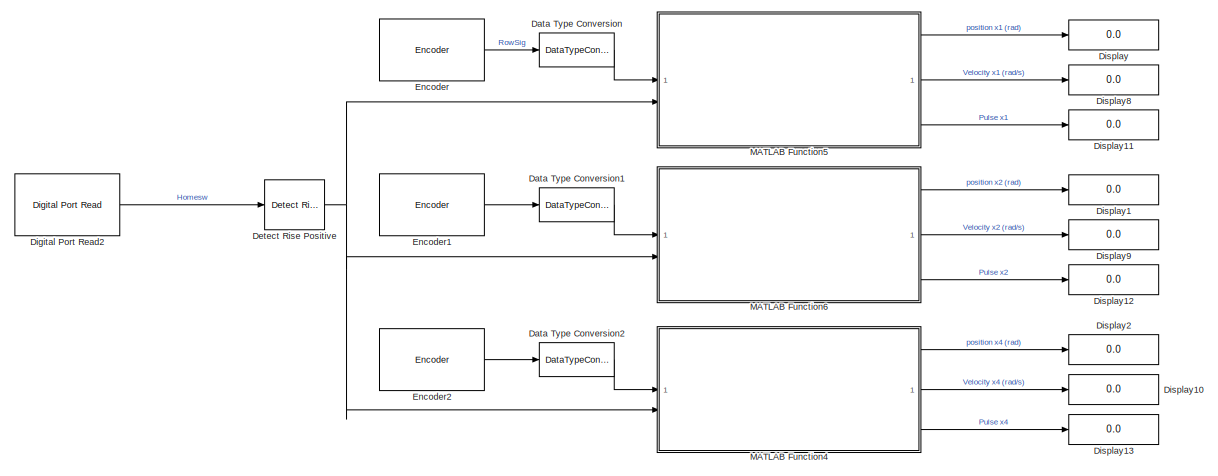
[diagram: root canvas - part 1/2, left side, full height]
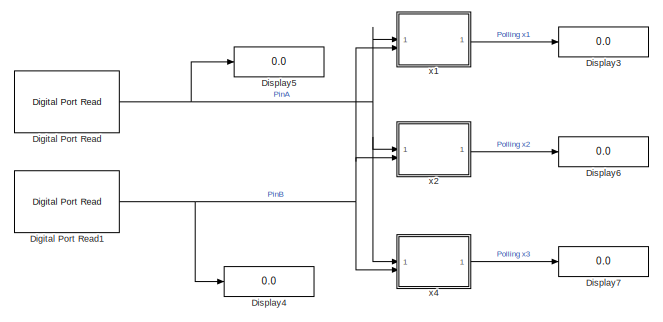
[diagram: root canvas - part 2/2, middle right region]
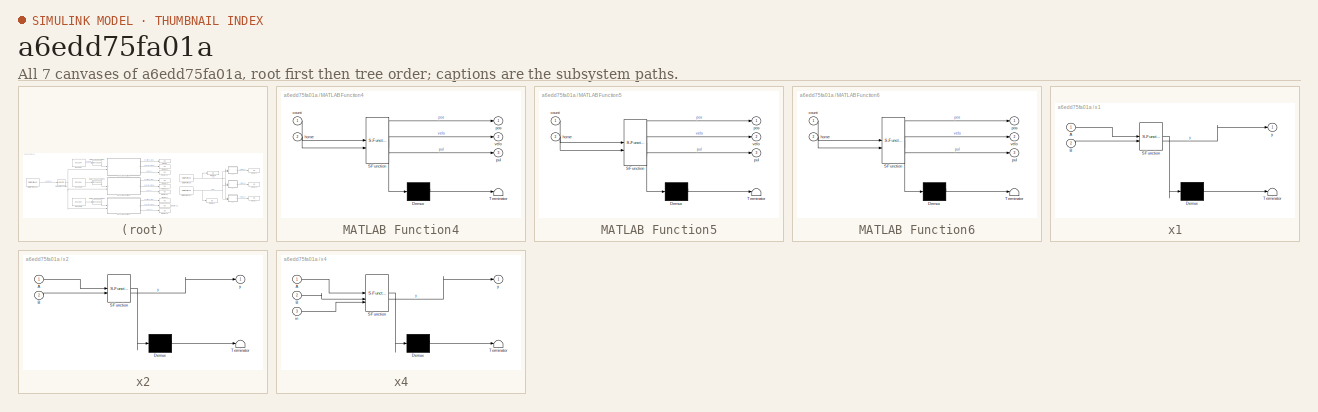
[diagram: thumbnail index - all 7 canvases of the model, root first then tree order]
MODEL slx_a6edd75fa01a
KIND model
CONFIG AbsTol = auto
CONFIG EnableMultiTasking = on
CONFIG FixedStep = 0.001
CONFIG MaxStep = auto
CONFIG MinStep = auto
CONFIG RelTol = 1e-3
CONFIG SampleTimeConstraint = Unconstrained
CONFIG SolverName = FixedStepAuto
CONFIG StartTime = 0.0
CONFIG StopTime = inf
BLOCK [DataTypeConversion] Data Type Conversion
  OutDataTypeStr = double
  RndMeth = Floor
  SaturateOnIntegerOverflow = off
BLOCK [DataTypeConversion] Data Type Conversion1
  OutDataTypeStr = double
  RndMeth = Floor
  SaturateOnIntegerOverflow = off
BLOCK [DataTypeConversion] Data Type Conversion2
  OutDataTypeStr = double
  RndMeth = Floor
  SaturateOnIntegerOverflow = off
BLOCK [Reference] Detect Rise Positive  REF=simulink/Logic and Bit
Operations/Detect Rise
Positive
  SourceBlock = simulink/Logic and Bit\nOperations/Detect Rise\nPositive
  SourceType = Detect Rise Positive
BLOCK [Reference] Digital Port Read  REF=stm32f4xxblockslib/Digital Port Read
  LibrarySourceBlock = stm32g4xxblockslib/Digital Port Read
  SourceBlock = stm32f4xxblockslib/Digital Port Read
  SourceType = stm32cube.blocks.DigitalPortRead
BLOCK [Reference] Digital Port Read1  REF=stm32f4xxblockslib/Digital Port Read
  LibrarySourceBlock = stm32g4xxblockslib/Digital Port Read
  SourceBlock = stm32f4xxblockslib/Digital Port Read
  SourceType = stm32cube.blocks.DigitalPortRead
BLOCK [Reference] Digital Port Read2  REF=stm32f4xxblockslib/Digital Port Read
  LibrarySourceBlock = stm32g4xxblockslib/Digital Port Read
  SourceBlock = stm32f4xxblockslib/Digital Port Read
  SourceType = stm32cube.blocks.DigitalPortRead
BLOCK [Display] Display
  Decimation = 1
BLOCK [Display] Display1
  Decimation = 1
BLOCK [Display] Display10
  Decimation = 1
BLOCK [Display] Display11
  Decimation = 1
BLOCK [Display] Display12
  Decimation = 1
BLOCK [Display] Display13
  Decimation = 1
BLOCK [Display] Display2
  Decimation = 1
BLOCK [Display] Display3
  Decimation = 1
BLOCK [Display] Display4
  Decimation = 1
BLOCK [Display] Display5
  Decimation = 1
BLOCK [Display] Display6
  Decimation = 1
BLOCK [Display] Display7
  Decimation = 1
BLOCK [Display] Display8
  Decimation = 1
BLOCK [Display] Display9
  Decimation = 1
BLOCK [Reference] Encoder  REF=stm32g4xxblockslib/Encoder
  SourceBlock = stm32g4xxblockslib/Encoder
  SourceType = stm32cube.blocks.EncoderBlockForG4
BLOCK [Reference] Encoder1  REF=stm32g4xxblockslib/Encoder
  SourceBlock = stm32g4xxblockslib/Encoder
  SourceType = stm32cube.blocks.EncoderBlockForG4
BLOCK [Reference] Encoder2  REF=stm32g4xxblockslib/Encoder
  SourceBlock = stm32g4xxblockslib/Encoder
  SourceType = stm32cube.blocks.EncoderBlockForG4
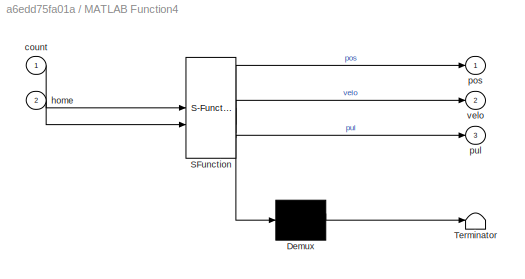
BLOCK [SubSystem] MATLAB Function4
  ErrorFcn = Stateflow.Translate.translate
  PermitHierarchicalResolution = ExplicitOnly
  SFBlockType = MATLAB Function
  TreatAsAtomicUnit = on
BLOCK [Demux] MATLAB Function4/ Demux 
  Outputs = 1
BLOCK [S-Function] MATLAB Function4/ SFunction 
  EnableBusSupport = on
  FunctionName = sf_sfun
  PortCounts = [2 4]
  SFcnIsStateOwnerBlock = off
  SFunctionDeploymentMode = off
  Tag = Stateflow S-Function 7
BLOCK [Terminator] MATLAB Function4/ Terminator 
BLOCK [Inport] MATLAB Function4/count
BLOCK [Inport] MATLAB Function4/home
  Port = 2
BLOCK [Outport] MATLAB Function4/pos
BLOCK [Outport] MATLAB Function4/pul
  Port = 3
BLOCK [Outport] MATLAB Function4/velo
  Port = 2
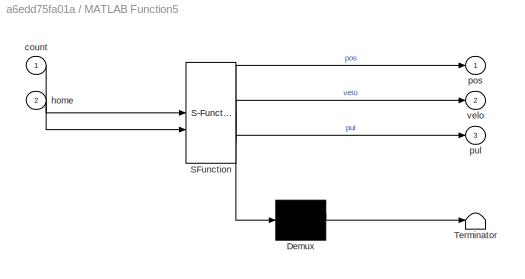
BLOCK [SubSystem] MATLAB Function5
  ErrorFcn = Stateflow.Translate.translate
  PermitHierarchicalResolution = ExplicitOnly
  SFBlockType = MATLAB Function
  TreatAsAtomicUnit = on
BLOCK [Demux] MATLAB Function5/ Demux 
  Outputs = 1
BLOCK [S-Function] MATLAB Function5/ SFunction 
  EnableBusSupport = on
  FunctionName = sf_sfun
  PortCounts = [2 4]
  SFcnIsStateOwnerBlock = off
  SFunctionDeploymentMode = off
  Tag = Stateflow S-Function 8
BLOCK [Terminator] MATLAB Function5/ Terminator 
BLOCK [Inport] MATLAB Function5/count
BLOCK [Inport] MATLAB Function5/home
  Port = 2
BLOCK [Outport] MATLAB Function5/pos
BLOCK [Outport] MATLAB Function5/pul
  Port = 3
BLOCK [Outport] MATLAB Function5/velo
  Port = 2
BLOCK [SubSystem] MATLAB Function6
  ErrorFcn = Stateflow.Translate.translate
  PermitHierarchicalResolution = ExplicitOnly
  SFBlockType = MATLAB Function
  TreatAsAtomicUnit = on
BLOCK [Demux] MATLAB Function6/ Demux 
  Outputs = 1
BLOCK [S-Function] MATLAB Function6/ SFunction 
  EnableBusSupport = on
  FunctionName = sf_sfun
  PortCounts = [2 4]
  SFcnIsStateOwnerBlock = off
  SFunctionDeploymentMode = off
  Tag = Stateflow S-Function 9
BLOCK [Terminator] MATLAB Function6/ Terminator 
BLOCK [Inport] MATLAB Function6/count
BLOCK [Inport] MATLAB Function6/home
  Port = 2
BLOCK [Outport] MATLAB Function6/pos
BLOCK [Outport] MATLAB Function6/pul
  Port = 3
BLOCK [Outport] MATLAB Function6/velo
  Port = 2
BLOCK [SubSystem] x1
  ErrorFcn = Stateflow.Translate.translate
  PermitHierarchicalResolution = ExplicitOnly
  SFBlockType = MATLAB Function
  TreatAsAtomicUnit = on
BLOCK [Demux] x1/ Demux 
  Outputs = 1
BLOCK [S-Function] x1/ SFunction 
  EnableBusSupport = on
  FunctionName = sf_sfun
  PortCounts = [2 2]
  SFcnIsStateOwnerBlock = off
  SFunctionDeploymentMode = off
  Tag = Stateflow S-Function 1
BLOCK [Terminator] x1/ Terminator 
BLOCK [Inport] x1/A
BLOCK [Inport] x1/B
  Port = 2
BLOCK [Outport] x1/y
BLOCK [SubSystem] x2
  ErrorFcn = Stateflow.Translate.translate
  PermitHierarchicalResolution = ExplicitOnly
  SFBlockType = MATLAB Function
  TreatAsAtomicUnit = on
BLOCK [Demux] x2/ Demux 
  Outputs = 1
BLOCK [S-Function] x2/ SFunction 
  EnableBusSupport = on
  FunctionName = sf_sfun
  PortCounts = [2 2]
  SFcnIsStateOwnerBlock = off
  SFunctionDeploymentMode = off
  Tag = Stateflow S-Function 5
BLOCK [Terminator] x2/ Terminator 
BLOCK [Inport] x2/A
BLOCK [Inport] x2/B
  Port = 2
BLOCK [Outport] x2/y
BLOCK [SubSystem] x4
  ErrorFcn = Stateflow.Translate.translate
  PermitHierarchicalResolution = ExplicitOnly
  SFBlockType = MATLAB Function
  TreatAsAtomicUnit = on
BLOCK [Demux] x4/ Demux 
  Outputs = 1
BLOCK [S-Function] x4/ SFunction 
  EnableBusSupport = on
  FunctionName = sf_sfun
  PortCounts = [3 2]
  SFcnIsStateOwnerBlock = off
  SFunctionDeploymentMode = off
  Tag = Stateflow S-Function 6
BLOCK [Terminator] x4/ Terminator 
BLOCK [Inport] x4/A
BLOCK [Inport] x4/B
  Port = 2
BLOCK [Inport] x4/in
  Port = 3
BLOCK [Outport] x4/y
LINE Data Type Conversion1:1 -> MATLAB Function6:1
LINE Data Type Conversion2:1 -> MATLAB Function4:1
LINE Data Type Conversion:1 -> MATLAB Function5:1
NET Detect Rise Positive:1 -> MATLAB Function4:2, MATLAB Function5:2, MATLAB Function6:2
NET Digital Port Read1:1 -> Display4:1, x1:2, x2:2, x4:2
LINE Digital Port Read2:1 -> Detect Rise Positive:1
NET Digital Port Read:1 -> Display5:1, x1:1, x2:1, x4:1
LINE Encoder1:1 -> Data Type Conversion1:1
LINE Encoder2:1 -> Data Type Conversion2:1
LINE Encoder:1 -> Data Type Conversion:1
LINE MATLAB Function4:1 -> Display2:1
LINE MATLAB Function4:2 -> Display10:1
LINE MATLAB Function4:3 -> Display13:1
LINE MATLAB Function5:1 -> Display:1
LINE MATLAB Function5:2 -> Display8:1
LINE MATLAB Function5:3 -> Display11:1
LINE MATLAB Function6:1 -> Display1:1
LINE MATLAB Function6:2 -> Display9:1
LINE MATLAB Function6:3 -> Display12:1
LINE x1:1 -> Display3:1
LINE x2:1 -> Display6:1
LINE x4:1 -> Display7:1
note: NET lines group one-source signal fan-out (src -> all destinations, sorted); 1:1 wires keep LINE
CHART x1 states=1 transitions=1
  STATE_LABEL 'eML_blk_kernel()'
  STATE_LABEL 'SCRIPT:\nfunction y =  pollingX1(A, B)\n    persistent c stageA\n    if isempty(c)\n        c = 0;\n        stageA = 1;\n    end\n\n    if A == 0 && stageA\n        stageA = 0;\n        c = c + 2 * B - 1;\n    elseif A == 1\n        stageA = 1;\n    end\n\n    y = c;\nend\n'
CHART x2 states=1 transitions=1
  STATE_LABEL 'eML_blk_kernel()'
  STATE_LABEL 'SCRIPT:\nfunction y = pollingX2(A, B)\n    persistent c stageA\n    if isempty(c)\n        c = 0;\n        stageA = 1;\n    end\n\n    if A == 0 && stageA\n        stageA = 0;\n        c = c + 2 * B - 1;\n    elseif A == 1 && ~stageA\n        stageA = 1;\n        c = c + 1 - 2 * B;\n    end\n\n    y = c;\nend\n\n'
CHART x4 states=1 transitions=1
  STATE_LABEL 'eML_blk_kernel()'
  STATE_LABEL 'SCRIPT:\nfunction y = fcn(A,B,in)\npersistent c\npersistent stageA\npersistent stageB\nif isempty(c)\n   c = 0;\n   stageA=1;\n   stageB=1;\nend\nif in==1\n    c=0;\nend\nif A==0 && stageA==1\n    stageA=0;\n    if B==1\n        c=c+1;\n    else\n        c=c-1;\n    end\nelse\n    if A==1 && stageA==0\n        stageA=1;\n        if B==0\n            c=c+1;\n        else\n            c=c-1;\n        end\n    end\nend\n\nif B==0 ...<+234ch>'
CHART MATLAB Function4 states=1 transitions=1
  STATE_LABEL 'eML_blk_kernel()'
  STATE_LABEL 'SCRIPT:\nfunction [pos, velo, pul] = calFunctionX4(count, home)\n    persistent pulse lastpulse lastrad home_position;\n    \n    if isempty(pulse)\n        pulse = 0;\n        lastpulse = 0;\n        lastrad = 0;\n        home_position = 0;\n    end\n    \n    pulse_diff = count - lastpulse;\n    if abs(pulse_diff) > 10000\n        pulse = pulse + (8258.68 * sign(pulse_diff) - pulse_diff);\n    else\n        pu...<+245ch>'
CHART MATLAB Function5 states=1 transitions=1
  STATE_LABEL 'eML_blk_kernel()'
  STATE_LABEL 'SCRIPT:\nfunction [pos, velo, pul] = calFunctionX1(count, home)\n    persistent pulse lastpulse lastrad home_position;\n    \n    if isempty(pulse)\n        pulse = 0;\n        lastpulse = 0;\n        lastrad = 0;\n        home_position = 0;\n    end\n    \n    pulse_diff = count - lastpulse;\n    if abs(pulse_diff) > 10000\n        pulse = pulse + (2064.67 * sign(pulse_diff) - pulse_diff);\n    else\n        pu...<+246ch>'
CHART MATLAB Function6 states=1 transitions=1
  STATE_LABEL 'eML_blk_kernel()'
  STATE_LABEL 'SCRIPT:\nfunction [pos, velo, pul] = calFunctionX2(count, home)\n    persistent pulse lastpulse lastrad home_position;\n    \n    if isempty(pulse)\n        pulse = 0;\n        lastpulse = 0;\n        lastrad = 0;\n        home_position = 0;\n    end\n    \n    pulse_diff = count - lastpulse;\n    if abs(pulse_diff) > 10000\n        pulse = pulse + (4129.34 * sign(pulse_diff) - pulse_diff);\n    else\n        pu...<+244ch>'
CHART  states=0 transitions=0
CHART  states=0 transitions=0
CHART  states=0 transitions=0
CHART  states=0 transitions=0
CHART  states=0 transitions=0
CHART  states=0 transitions=0
